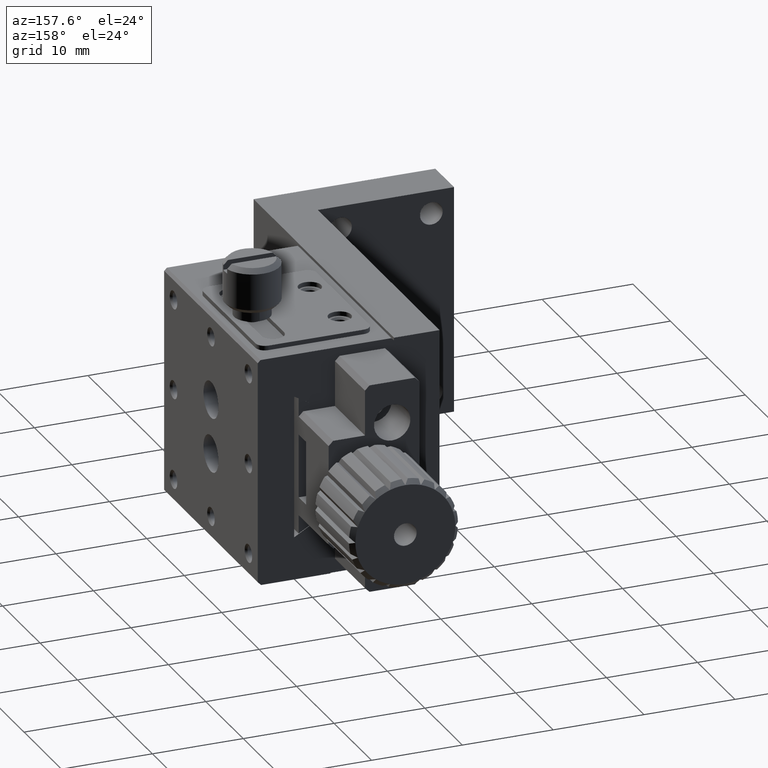
[diagram: clean part render]
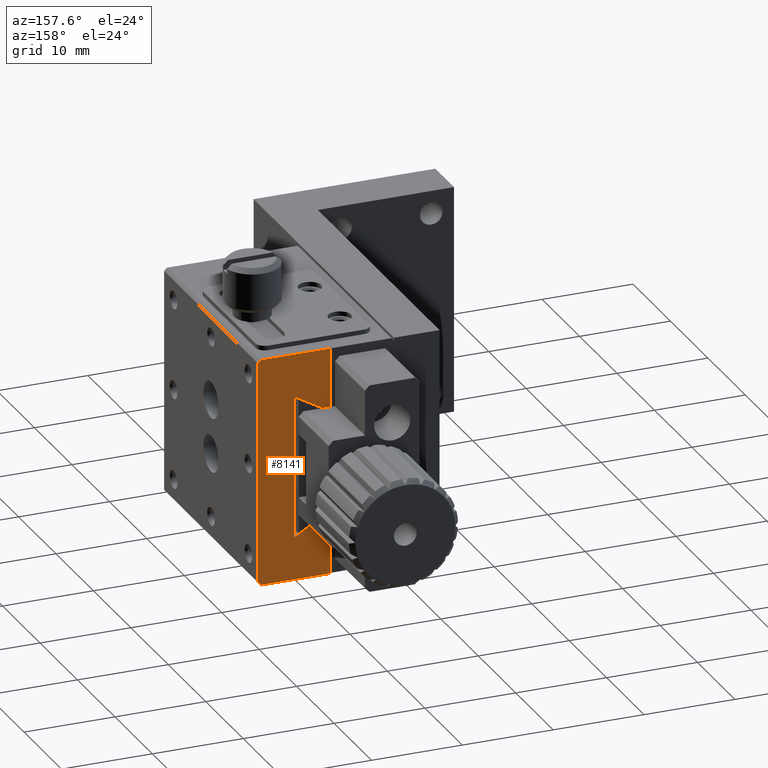
[diagram: same view with one face highlighted and labeled with its STEP entity id]
A machine part, auxiliary view. The second image highlights one B-rep face of the part: STEP entity #8141.
In plain terms, the highlighted planar face has unit normal (0, -1, 0).
Its self-contained STEP definition (entity closure, byte-faithful):
#86 = ORIENTED_EDGE ( 'NONE', *, *, #625, .F. ) ;
#191 = ORIENTED_EDGE ( 'NONE', *, *, #4687, .F. ) ;
#269 = VERTEX_POINT ( 'NONE', #2231 ) ;
#455 = EDGE_LOOP ( 'NONE', ( #6307, #866, #2240, #191, #86, #1385, #4762, #8420, #4464, #7015 ) ) ;
#625 = EDGE_CURVE ( 'NONE', #8148, #3065, #6914, .T. ) ;
#820 = DIRECTION ( 'NONE',  ( 0.000000000000000000, 0.000000000000000000, -1.000000000000000000 ) ) ;
#866 = ORIENTED_EDGE ( 'NONE', *, *, #4257, .T. ) ;
#1033 = LINE ( 'NONE', #1871, #6905 ) ;
#1038 = VECTOR ( 'NONE', #2582, 1000.000000000000000 ) ;
#1252 = CARTESIAN_POINT ( 'NONE',  ( 11.00000000000000000, 37.50000000000000000, -20.37499999999999289 ) ) ;
#1265 = LINE ( 'NONE', #4406, #7632 ) ;
#1385 = ORIENTED_EDGE ( 'NONE', *, *, #2875, .F. ) ;
#1520 = CARTESIAN_POINT ( 'NONE',  ( 14.63400000000001100, 37.50000000000000000, -25.06499999999999773 ) ) ;
#1582 = VERTEX_POINT ( 'NONE', #6709 ) ;
#1644 = CARTESIAN_POINT ( 'NONE',  ( 6.999999999999999112, 37.50000000000000000, 3.061616997868380282E-15 ) ) ;
#1763 = EDGE_CURVE ( 'NONE', #1582, #269, #4959, .T. ) ;
#1871 = CARTESIAN_POINT ( 'NONE',  ( 15.00000000000000000, 37.50000000000000000, -25.06499999999999773 ) ) ;
#1914 = EDGE_CURVE ( 'NONE', #7261, #2932, #4642, .T. ) ;
#1977 = LINE ( 'NONE', #7954, #4937 ) ;
#2175 = EDGE_CURVE ( 'NONE', #5020, #1582, #1977, .T. ) ;
#2231 = CARTESIAN_POINT ( 'NONE',  ( 11.00000000000000000, 37.50000000000000711, -4.689999999999995950 ) ) ;
#2240 = ORIENTED_EDGE ( 'NONE', *, *, #5126, .F. ) ;
#2401 = DIRECTION ( 'NONE',  ( 1.000000000000000000, 0.000000000000000000, 0.000000000000000000 ) ) ;
#2561 = EDGE_CURVE ( 'NONE', #2932, #5020, #6056, .T. ) ;
#2573 = PLANE ( 'NONE',  #8449 ) ;
#2582 = DIRECTION ( 'NONE',  ( -1.000000000000000000, -0.000000000000000000, -0.000000000000000000 ) ) ;
#2875 = EDGE_CURVE ( 'NONE', #6562, #8148, #3000, .T. ) ;
#2932 = VERTEX_POINT ( 'NONE', #4351 ) ;
#2966 = VECTOR ( 'NONE', #820, 1000.000000000000000 ) ;
#3000 = LINE ( 'NONE', #5662, #3566 ) ;
#3020 = VERTEX_POINT ( 'NONE', #3216 ) ;
#3042 = CARTESIAN_POINT ( 'NONE',  ( 14.63400000000001100, 37.50000000000000000, -25.06499999999999773 ) ) ;
#3065 = VERTEX_POINT ( 'NONE', #7846 ) ;
#3084 = DIRECTION ( 'NONE',  ( 0.000000000000000000, -1.000000000000000000, 0.000000000000000000 ) ) ;
#3143 = LINE ( 'NONE', #8243, #8183 ) ;
#3171 = VERTEX_POINT ( 'NONE', #1520 ) ;
#3216 = CARTESIAN_POINT ( 'NONE',  ( 14.99999999999999645, 37.50000000000000000, -24.69999999999999574 ) ) ;
#3566 = VECTOR ( 'NONE', #5014, 1000.000000000000114 ) ;
#3783 = DIRECTION ( 'NONE',  ( 0.000000000000000000, 0.000000000000000000, -1.000000000000000000 ) ) ;
#4257 = EDGE_CURVE ( 'NONE', #7261, #3020, #1265, .T. ) ;
#4294 = DIRECTION ( 'NONE',  ( -0.7071067811865134889, 0.000000000000000000, 0.7071067811865816566 ) ) ;
#4351 = CARTESIAN_POINT ( 'NONE',  ( 14.70000000000004547, 37.50000000000000000, 3.170037215116930725E-15 ) ) ;
#4406 = CARTESIAN_POINT ( 'NONE',  ( 14.99999999999999822, 37.50000000000000000, -24.69999999999999574 ) ) ;
#4464 = ORIENTED_EDGE ( 'NONE', *, *, #2175, .F. ) ;
#4642 = LINE ( 'NONE', #7295, #5909 ) ;
#4647 = VECTOR ( 'NONE', #8144, 1000.000000000000114 ) ;
#4687 = EDGE_CURVE ( 'NONE', #3065, #3171, #1033, .T. ) ;
#4761 = DIRECTION ( 'NONE',  ( 0.000000000000000000, 0.000000000000000000, -1.000000000000000000 ) ) ;
#4762 = ORIENTED_EDGE ( 'NONE', *, *, #6060, .F. ) ;
#4937 = VECTOR ( 'NONE', #4761, 1000.000000000000000 ) ;
#4959 = LINE ( 'NONE', #7536, #4647 ) ;
#5014 = DIRECTION ( 'NONE',  ( -0.8659692529111527870, 0.000000000000000000, 0.5000972435561906737 ) ) ;
#5020 = VERTEX_POINT ( 'NONE', #7623 ) ;
#5126 = EDGE_CURVE ( 'NONE', #3171, #3020, #5780, .T. ) ;
#5662 = CARTESIAN_POINT ( 'NONE',  ( 11.00000000000000000, 37.50000000000000000, -20.37499999999999645 ) ) ;
#5742 = CARTESIAN_POINT ( 'NONE',  ( 6.999999999999999112, 37.50000000000000711, -18.06499999999999773 ) ) ;
#5780 = LINE ( 'NONE', #3042, #6912 ) ;
#5909 = VECTOR ( 'NONE', #4294, 1000.000000000000000 ) ;
#6056 = LINE ( 'NONE', #7272, #1038 ) ;
#6060 = EDGE_CURVE ( 'NONE', #269, #6562, #3143, .T. ) ;
#6307 = ORIENTED_EDGE ( 'NONE', *, *, #1914, .F. ) ;
#6349 = DIRECTION ( 'NONE',  ( 0.7080734329827849116, 0.000000000000000000, 0.7061388061167391816 ) ) ;
#6483 = CARTESIAN_POINT ( 'NONE',  ( 15.00000000000000000, 37.50000000000000000, 3.061616997868380282E-15 ) ) ;
#6562 = VERTEX_POINT ( 'NONE', #1252 ) ;
#6709 = CARTESIAN_POINT ( 'NONE',  ( 6.999999999999999112, 37.50000000000000000, -6.999999999999995559 ) ) ;
#6905 = VECTOR ( 'NONE', #2401, 1000.000000000000000 ) ;
#6912 = VECTOR ( 'NONE', #6349, 1000.000000000000000 ) ;
#6914 = LINE ( 'NONE', #1644, #2966 ) ;
#7015 = ORIENTED_EDGE ( 'NONE', *, *, #2561, .F. ) ;
#7023 = DIRECTION ( 'NONE',  ( 0.000000000000000000, 0.000000000000000000, -1.000000000000000000 ) ) ;
#7068 = CARTESIAN_POINT ( 'NONE',  ( 15.00000000000000000, 37.50000000000000000, -0.2999999999999803935 ) ) ;
#7261 = VERTEX_POINT ( 'NONE', #7068 ) ;
#7272 = CARTESIAN_POINT ( 'NONE',  ( 15.00000000000000000, 37.50000000000000000, 3.061616997868380282E-15 ) ) ;
#7295 = CARTESIAN_POINT ( 'NONE',  ( 15.00000000000000000, 37.50000000000000000, -0.2999999999999809486 ) ) ;
#7536 = CARTESIAN_POINT ( 'NONE',  ( 6.999999999999999112, 37.50000000000000000, -6.999999999999996447 ) ) ;
#7623 = CARTESIAN_POINT ( 'NONE',  ( 6.999999999999999112, 37.50000000000000000, 3.429011037612586120E-15 ) ) ;
#7632 = VECTOR ( 'NONE', #7856, 1000.000000000000000 ) ;
#7846 = CARTESIAN_POINT ( 'NONE',  ( 6.999999999999999112, 37.50000000000000000, -25.06499999999999773 ) ) ;
#7856 = DIRECTION ( 'NONE',  ( -6.067341726462099832E-17, -0.000000000000000000, -1.000000000000000000 ) ) ;
#7954 = CARTESIAN_POINT ( 'NONE',  ( 6.999999999999999112, 37.50000000000000000, 3.061616997868380282E-15 ) ) ;
#8141 = ADVANCED_FACE ( 'NONE', ( #8316 ), #2573, .F. ) ;
#8144 = DIRECTION ( 'NONE',  ( 0.8659692529111527870, 0.000000000000000000, 0.5000972435561906737 ) ) ;
#8148 = VERTEX_POINT ( 'NONE', #5742 ) ;
#8183 = VECTOR ( 'NONE', #7023, 1000.000000000000000 ) ;
#8243 = CARTESIAN_POINT ( 'NONE',  ( 11.00000000000000000, 37.50000000000000000, 3.061616997868380282E-15 ) ) ;
#8316 = FACE_OUTER_BOUND ( 'NONE', #455, .T. ) ;
#8420 = ORIENTED_EDGE ( 'NONE', *, *, #1763, .F. ) ;
#8449 = AXIS2_PLACEMENT_3D ( 'NONE', #6483, #3084, #3783 ) ;